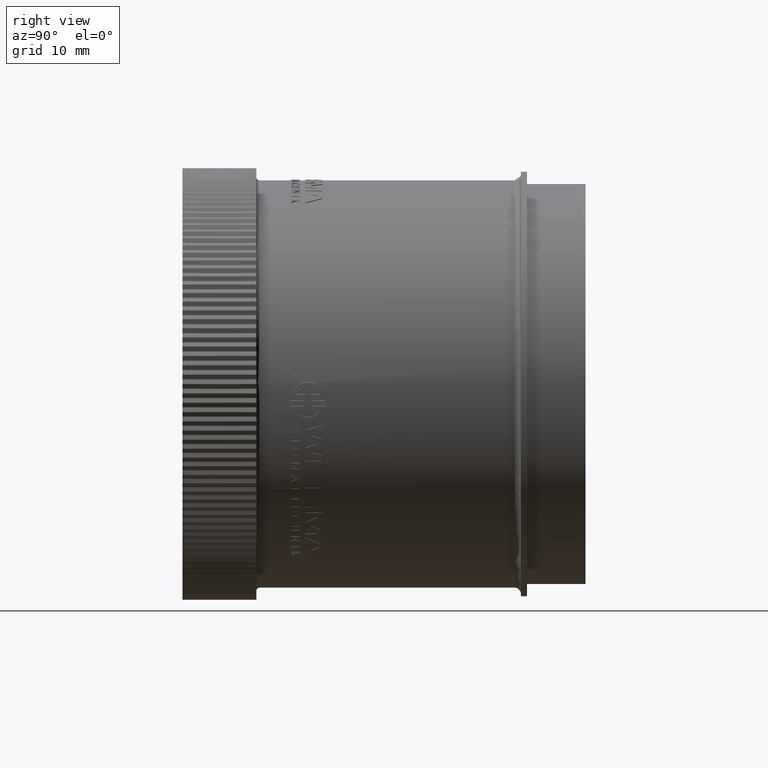
[diagram: clean part render]
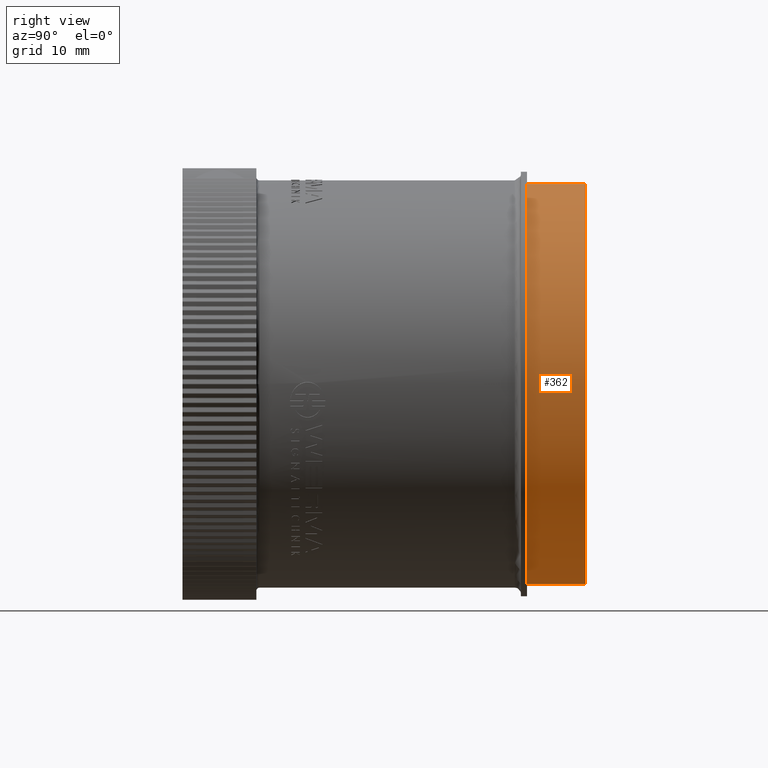
[diagram: same view with one face highlighted and labeled with its STEP entity id]
A machine part, right view. The second image highlights one B-rep face of the part: STEP entity #362.
In plain terms, the highlighted cylindrical surface (partial cylindrical patch) has radius 32.5 mm, axis along (0, -1, 0).
Its self-contained STEP definition (entity closure, byte-faithful):
#362 = ADVANCED_FACE ( 'NONE', ( #46993 ), #15988, .T. ) ;
#898 = EDGE_CURVE ( 'NONE', #4212, #6084, #10465, .T. ) ;
#3627 = VERTEX_POINT ( 'NONE', #37206 ) ;
#3734 = DIRECTION ( 'NONE',  ( 0.0000000000000000000, -1.000000000000000000, 0.0000000000000000000 ) ) ;
#4194 = CARTESIAN_POINT ( 'NONE',  ( 0.0000000000000000000, 2.391732283464567600, 0.0000000000000000000 ) ) ;
#4212 = VERTEX_POINT ( 'NONE', #26076 ) ;
#5543 = VERTEX_POINT ( 'NONE', #34848 ) ;
#6084 = VERTEX_POINT ( 'NONE', #15958 ) ;
#7061 = EDGE_CURVE ( 'NONE', #5543, #6084, #42886, .T. ) ;
#9710 = DIRECTION ( 'NONE',  ( 0.0000000000000000000, -1.000000000000000000, 0.0000000000000000000 ) ) ;
#10465 = LINE ( 'NONE', #23204, #49395 ) ;
#11377 = CARTESIAN_POINT ( 'NONE',  ( 0.0000000000000000000, 2.391732283464567600, -1.279527559055118300 ) ) ;
#13608 = LINE ( 'NONE', #11377, #22781 ) ;
#15294 = DIRECTION ( 'NONE',  ( 0.0000000000000000000, -1.000000000000000000, 0.0000000000000000000 ) ) ;
#15958 = CARTESIAN_POINT ( 'NONE',  ( 1.566969329617676700E-016, 2.204724409448819400, 1.279527559055118300 ) ) ;
#15988 = CYLINDRICAL_SURFACE ( 'NONE', #24339, 1.279527559055118300 ) ;
#17370 = CARTESIAN_POINT ( 'NONE',  ( 0.0000000000000000000, 2.204724409448819400, 0.0000000000000000000 ) ) ;
#19197 = EDGE_CURVE ( 'NONE', #3627, #4212, #24844, .T. ) ;
#20505 = ORIENTED_EDGE ( 'NONE', *, *, #898, .T. ) ;
#21315 = DIRECTION ( 'NONE',  ( 0.0000000000000000000, 0.0000000000000000000, -1.000000000000000000 ) ) ;
#22781 = VECTOR ( 'NONE', #15294, 39.37007874015748100 ) ;
#23204 = CARTESIAN_POINT ( 'NONE',  ( 1.566969329617676700E-016, 2.391732283464567600, 1.279527559055118300 ) ) ;
#24339 = AXIS2_PLACEMENT_3D ( 'NONE', #4194, #46885, #27622 ) ;
#24646 = AXIS2_PLACEMENT_3D ( 'NONE', #33086, #9710, #37008 ) ;
#24761 = ORIENTED_EDGE ( 'NONE', *, *, #7061, .F. ) ;
#24844 = CIRCLE ( 'NONE', #24646, 1.279527559055118300 ) ;
#25834 = AXIS2_PLACEMENT_3D ( 'NONE', #17370, #44550, #21315 ) ;
#26076 = CARTESIAN_POINT ( 'NONE',  ( 1.566969329617676700E-016, 2.578740157480315300, 1.279527559055118300 ) ) ;
#27622 = DIRECTION ( 'NONE',  ( 0.0000000000000000000, 0.0000000000000000000, -1.000000000000000000 ) ) ;
#28036 = ORIENTED_EDGE ( 'NONE', *, *, #36806, .F. ) ;
#33086 = CARTESIAN_POINT ( 'NONE',  ( 0.0000000000000000000, 2.578740157480315300, 0.0000000000000000000 ) ) ;
#34572 = EDGE_LOOP ( 'NONE', ( #35682, #20505, #24761, #28036 ) ) ;
#34848 = CARTESIAN_POINT ( 'NONE',  ( 0.0000000000000000000, 2.204724409448819400, -1.279527559055118300 ) ) ;
#35682 = ORIENTED_EDGE ( 'NONE', *, *, #19197, .T. ) ;
#36806 = EDGE_CURVE ( 'NONE', #3627, #5543, #13608, .T. ) ;
#37008 = DIRECTION ( 'NONE',  ( 0.0000000000000000000, 0.0000000000000000000, -1.000000000000000000 ) ) ;
#37206 = CARTESIAN_POINT ( 'NONE',  ( 0.0000000000000000000, 2.578740157480315300, -1.279527559055118300 ) ) ;
#42886 = CIRCLE ( 'NONE', #25834, 1.279527559055118300 ) ;
#44550 = DIRECTION ( 'NONE',  ( 0.0000000000000000000, -1.000000000000000000, 0.0000000000000000000 ) ) ;
#46885 = DIRECTION ( 'NONE',  ( 0.0000000000000000000, -1.000000000000000000, 0.0000000000000000000 ) ) ;
#46993 = FACE_OUTER_BOUND ( 'NONE', #34572, .T. ) ;
#49395 = VECTOR ( 'NONE', #3734, 39.37007874015748100 ) ;